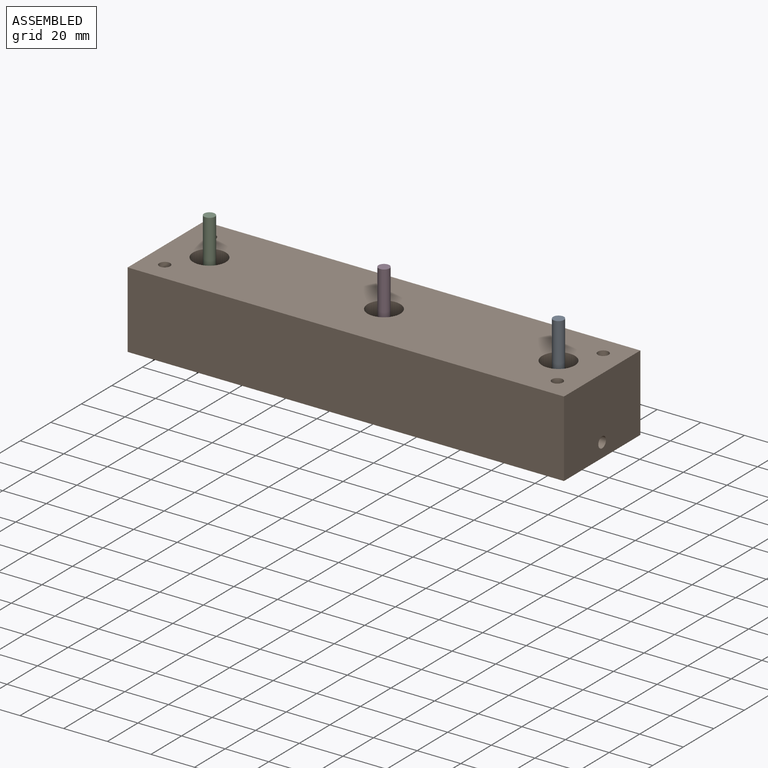
[diagram: assembled view]
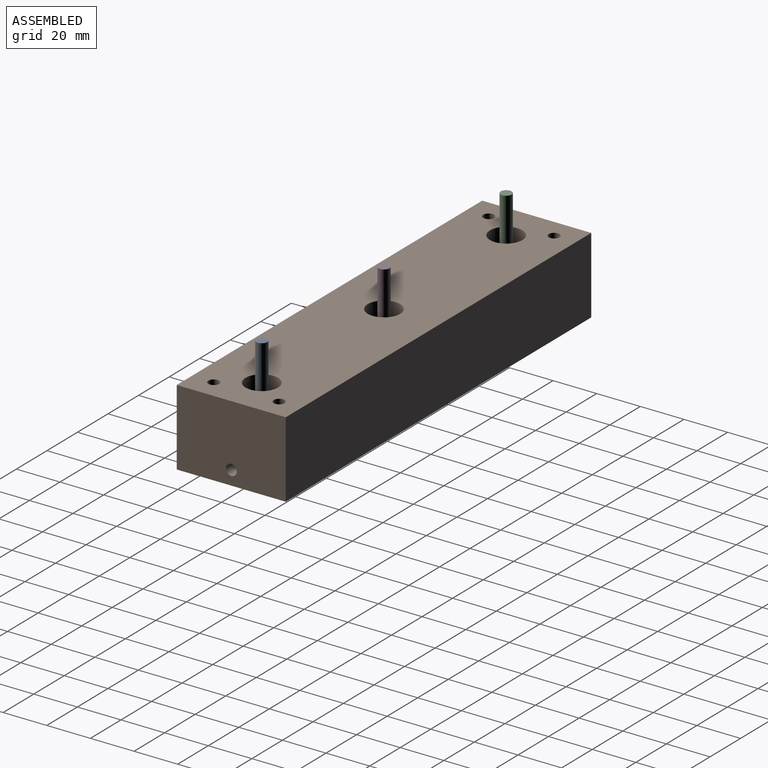
[diagram: assembled view, second angle]
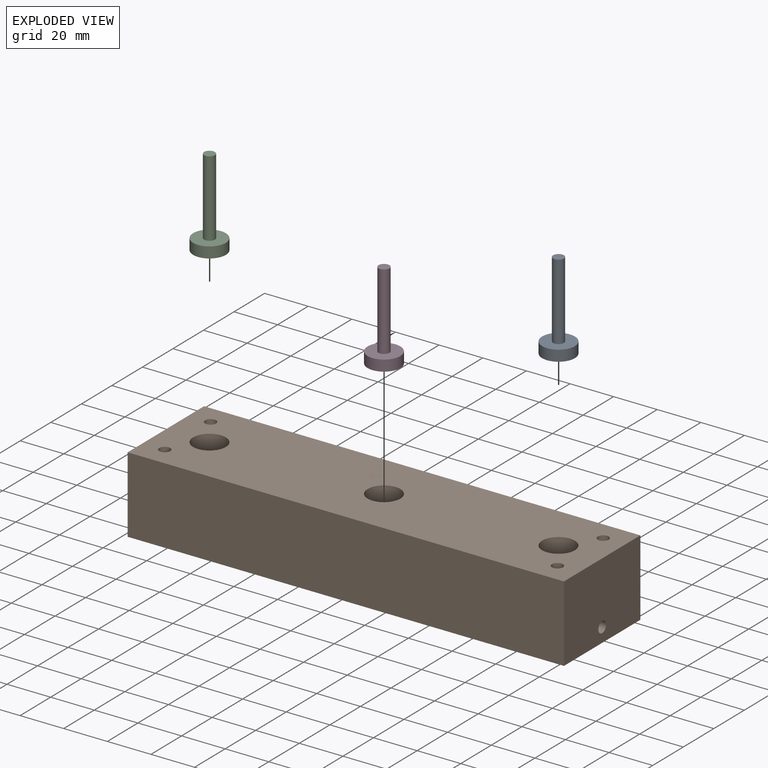
[diagram: exploded view]
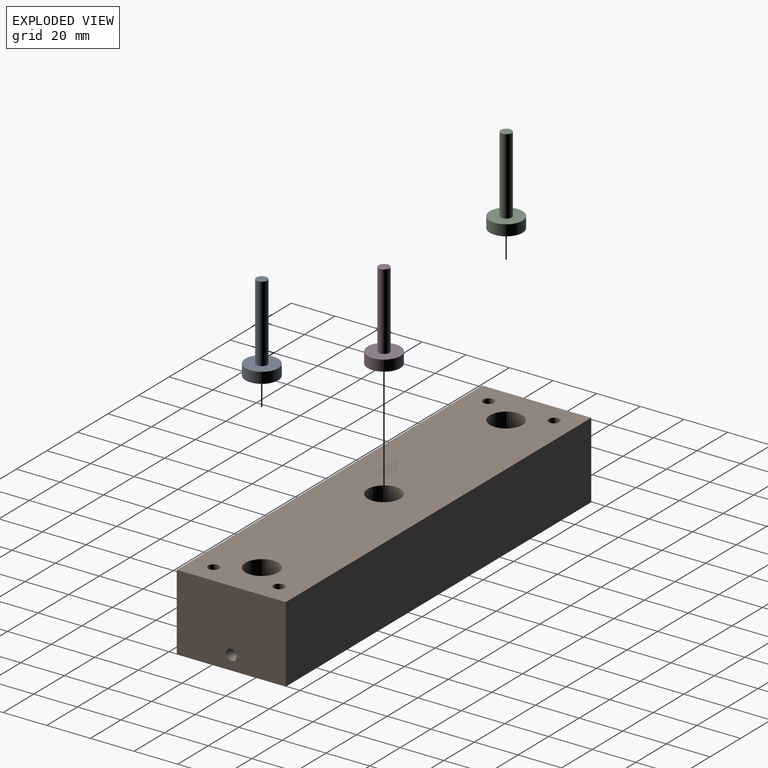
[diagram: exploded view, second angle]
ASSEMBLY  parts=4 mates=3
PART A: 5 faces, bbox 15x15x40 mm
  f0: cylinder r=7.5mm len=15mm, axis (0,0,-1), area 235.6mm2, adj f1,f2
  f1: plane 15x15mm, normal (0,0,1), area 157.1mm2, adj f0,f3
  f2: plane 15x15mm, normal (0,0,-1), area 176.7mm2, adj f0
  f3: cylinder r=2.5mm len=35mm, axis (0,0,-1), area 549.8mm2, adj f1,f4
  f4: plane 5x5mm, normal (0,0,1), area 19.6mm2, adj f3
PART B: 26 faces, bbox 200x50x35 mm
  f0: cylinder r=2.5mm len=200mm, axis (1,0,0), area 3068mm2, adj f1,f2,f3,f18,f19,f20,f21,f22
  f1: cone r=0mm half-angle=59deg, axis (0,0,1), area 0mm2, adj f0,f3
  f2: cone r=0mm half-angle=59deg, axis (0,0,1), area 0mm2, adj f0,f3
  f3: cylinder r=2.5mm len=5mm, axis (0,0,1), area 29.5mm2, adj f0,f1,f2,f4
  f4: plane 15x15mm, normal (0,0,1), area 157.1mm2, adj f3,f5
  f5: cylinder r=7.5mm len=25mm, axis (0,0,-1), area 1178.1mm2, adj f4,f6
  f6: plane 200x50mm, normal (0,0,1), area 9391.3mm2, adj f5,f7,f9,f10,f12,f14,f15,f16
  f7: cylinder r=2.5mm len=35mm, axis (0,0,-1), area 549.8mm2, adj f6,f8
  f8: plane 200x50mm, normal (0,0,-1), area 9921.5mm2, adj f7,f9,f14,f15,f16,f17,f24,f25
  f9: cylinder r=2.5mm len=35mm, axis (0,0,-1), area 549.8mm2, adj f6,f8
  f10: cylinder r=7.5mm len=25mm, axis (0,0,-1), area 1178.1mm2, adj f6,f11
  f11: plane 15x15mm, normal (0,0,1), area 157.1mm2, adj f10,f20
  f12: cylinder r=7.5mm len=25mm, axis (0,0,-1), area 1178.1mm2, adj f6,f13
  f13: plane 15x15mm, normal (0,0,1), area 157.1mm2, adj f12,f23
  f14: plane 200x35mm, normal (0,-1,0), area 7000mm2, adj f6,f8,f24,f25
  f15: plane 200x35mm, normal (0,1,0), area 7000mm2, adj f6,f8,f24,f25
  f16: cylinder r=2.5mm len=35mm, axis (0,0,-1), area 549.8mm2, adj f6,f8
  f17: cylinder r=2.5mm len=35mm, axis (0,0,-1), area 549.8mm2, adj f6,f8
  f18: cone r=0mm half-angle=59deg, axis (0,0,1), area 0mm2, adj f0,f20
  f19: cone r=0mm half-angle=59deg, axis (0,0,1), area 0mm2, adj f0,f20
  f20: cylinder r=2.5mm len=5mm, axis (0,0,1), area 29.5mm2, adj f0,f11,f18,f19
  f21: cone r=0mm half-angle=59deg, axis (0,0,1), area 0mm2, adj f0,f23
  f22: cone r=0mm half-angle=59deg, axis (0,0,1), area 0mm2, adj f0,f23
  f23: cylinder r=2.5mm len=5mm, axis (0,0,1), area 29.5mm2, adj f0,f13,f21,f22
  f24: plane 50x35mm, normal (-1,0,0), area 1730.4mm2, adj f0,f6,f8,f14,f15
  f25: plane 50x35mm, normal (1,0,0), area 1730.4mm2, adj f0,f6,f8,f14,f15
PART C: same geometry as A
PART D: same geometry as A
PLACE A t=(85.91,-47.3,-115.71)mm
PLACE B t=(-94.09,-22.3,-118.21)mm
PLACE C t=(-74.09,-47.3,-115.71)mm
PLACE D t=(5.91,-47.3,-115.71)mm
MATE revolute C.f3 <-> B.f1  axis (0,0,-1) through (-74.09,-47.3,-93.21)mm
MATE slider A.f3 <-> B.f10  axis (0,0,-1) through (85.91,-47.3,-93.21)mm
MATE slider D.f3 <-> B.f12  axis (0,0,-1) through (5.91,-47.3,-93.21)mm
